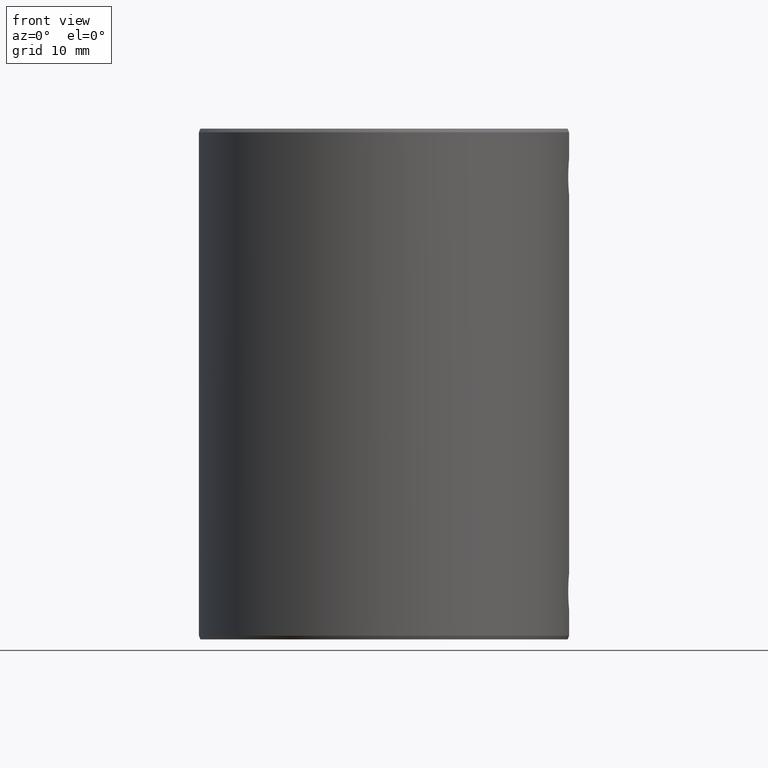
[diagram: clean part render]
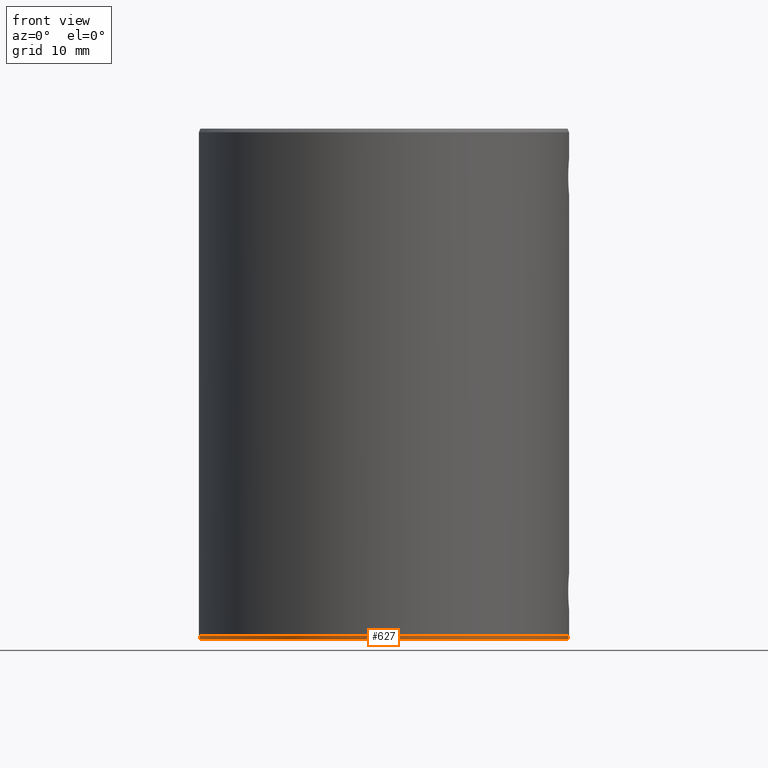
[diagram: same view with one face highlighted and labeled with its STEP entity id]
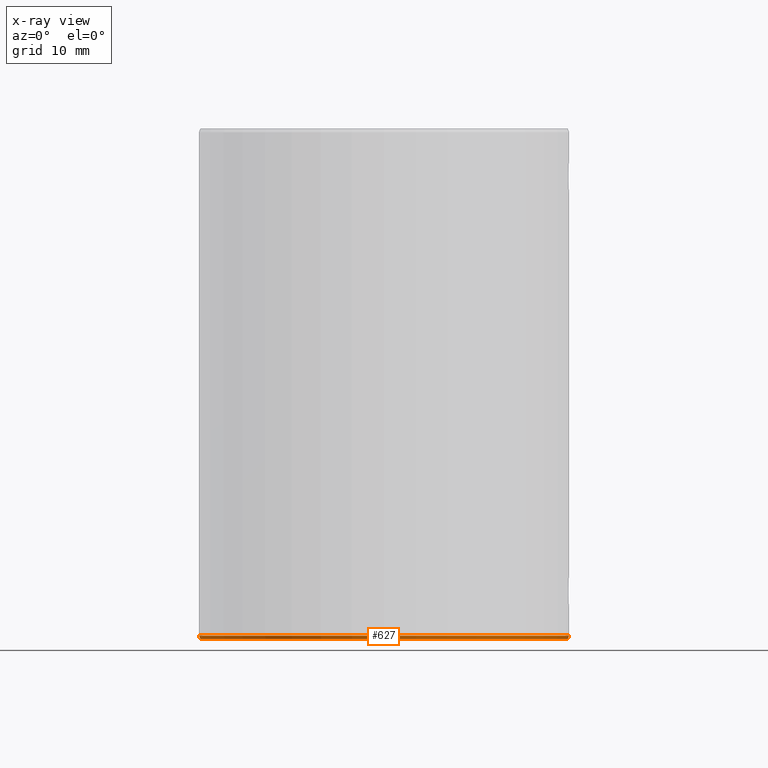
[diagram: x-ray of the same camera — body ghosted, the highlighted face saturated]
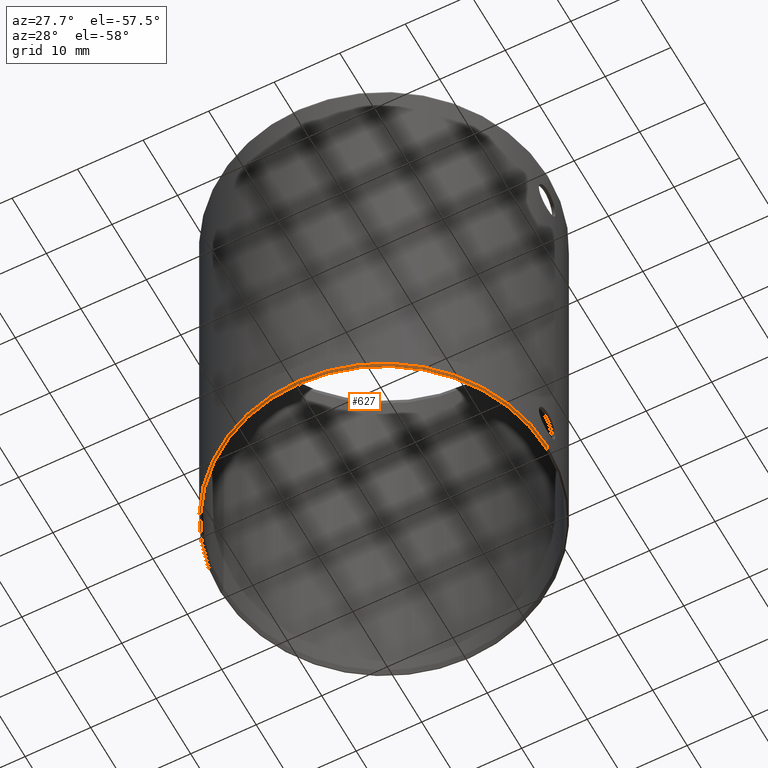
[diagram: same view with one face highlighted and labeled with its STEP entity id]
A machine part, front view. The second image highlights one B-rep face of the part: STEP entity #627.
The next image is the same camera in x-ray: the body ghosted, the highlighted face saturated — about 0% of this face is hidden behind the body in this view.
A second angle (auxiliary view) of the same face is appended — the face is thin or edge-on in the first view.
In plain terms, the highlighted conical surface has half-angle 21.801 deg.
Its self-contained STEP definition (entity closure, byte-faithful):
#2 = DIRECTION ( 'NONE',  ( 1.000000000000000000, 0.0000000000000000000, 0.0000000000000000000 ) ) ;
#13 = CARTESIAN_POINT ( 'NONE',  ( 24.80000000000001100, 0.0000000000000000000, 0.0000000000000000000 ) ) ;
#56 = DIRECTION ( 'NONE',  ( -0.3713906763541026100, 4.548224030302224200E-017, 0.9284766908852598600 ) ) ;
#71 = EDGE_LOOP ( 'NONE', ( #464, #117, #318, #243 ) ) ;
#75 = DIRECTION ( 'NONE',  ( 1.000000000000000000, 0.0000000000000000000, 0.0000000000000000000 ) ) ;
#76 = FACE_OUTER_BOUND ( 'NONE', #71, .T. ) ;
#116 = CONICAL_SURFACE ( 'NONE', #548, 25.00000000000000000, 0.3805063771123636800 ) ;
#117 = ORIENTED_EDGE ( 'NONE', *, *, #312, .F. ) ;
#141 = EDGE_CURVE ( 'NONE', #289, #552, #722, .T. ) ;
#174 = AXIS2_PLACEMENT_3D ( 'NONE', #622, #754, #2 ) ;
#199 = CIRCLE ( 'NONE', #416, 25.00000000000000000 ) ;
#243 = ORIENTED_EDGE ( 'NONE', *, *, #388, .F. ) ;
#269 = CARTESIAN_POINT ( 'NONE',  ( 25.00000000000000000, 3.061616997868383000E-015, 0.4999999999999726900 ) ) ;
#278 = CARTESIAN_POINT ( 'NONE',  ( 0.0000000000000000000, 0.0000000000000000000, 0.4999999999999726900 ) ) ;
#289 = VERTEX_POINT ( 'NONE', #13 ) ;
#312 = EDGE_CURVE ( 'NONE', #289, #487, #569, .T. ) ;
#318 = ORIENTED_EDGE ( 'NONE', *, *, #141, .T. ) ;
#343 = CARTESIAN_POINT ( 'NONE',  ( -25.00000000000000000, 0.0000000000000000000, 0.4999999999999726900 ) ) ;
#377 = VECTOR ( 'NONE', #748, 999.9999999999998900 ) ;
#388 = EDGE_CURVE ( 'NONE', #440, #552, #199, .T. ) ;
#408 = CARTESIAN_POINT ( 'NONE',  ( -24.80000000000001100, 3.049370529876910500E-015, 0.0000000000000000000 ) ) ;
#416 = AXIS2_PLACEMENT_3D ( 'NONE', #630, #697, #75 ) ;
#440 = VERTEX_POINT ( 'NONE', #343 ) ;
#464 = ORIENTED_EDGE ( 'NONE', *, *, #606, .F. ) ;
#472 = LINE ( 'NONE', #603, #727 ) ;
#487 = VERTEX_POINT ( 'NONE', #408 ) ;
#548 = AXIS2_PLACEMENT_3D ( 'NONE', #278, #732, #602 ) ;
#552 = VERTEX_POINT ( 'NONE', #269 ) ;
#569 = CIRCLE ( 'NONE', #174, 24.80000000000001100 ) ;
#602 = DIRECTION ( 'NONE',  ( 1.000000000000000000, 0.0000000000000000000, 0.0000000000000000000 ) ) ;
#603 = CARTESIAN_POINT ( 'NONE',  ( -25.00000000000000000, 3.061616997868383000E-015, 0.4999999999999726900 ) ) ;
#606 = EDGE_CURVE ( 'NONE', #487, #440, #472, .T. ) ;
#622 = CARTESIAN_POINT ( 'NONE',  ( 0.0000000000000000000, 0.0000000000000000000, 0.0000000000000000000 ) ) ;
#627 = ADVANCED_FACE ( 'NONE', ( #76 ), #116, .T. ) ;
#630 = CARTESIAN_POINT ( 'NONE',  ( 0.0000000000000000000, 0.0000000000000000000, 0.4999999999999726900 ) ) ;
#690 = CARTESIAN_POINT ( 'NONE',  ( 25.00000000000000000, 0.0000000000000000000, 0.4999999999999726900 ) ) ;
#697 = DIRECTION ( 'NONE',  ( -0.0000000000000000000, -0.0000000000000000000, 1.000000000000000000 ) ) ;
#722 = LINE ( 'NONE', #690, #377 ) ;
#727 = VECTOR ( 'NONE', #56, 999.9999999999998900 ) ;
#732 = DIRECTION ( 'NONE',  ( -0.0000000000000000000, -0.0000000000000000000, 1.000000000000000000 ) ) ;
#748 = DIRECTION ( 'NONE',  ( 0.3713906763541026100, 0.0000000000000000000, 0.9284766908852598600 ) ) ;
#754 = DIRECTION ( 'NONE',  ( -0.0000000000000000000, -0.0000000000000000000, -1.000000000000000000 ) ) ;